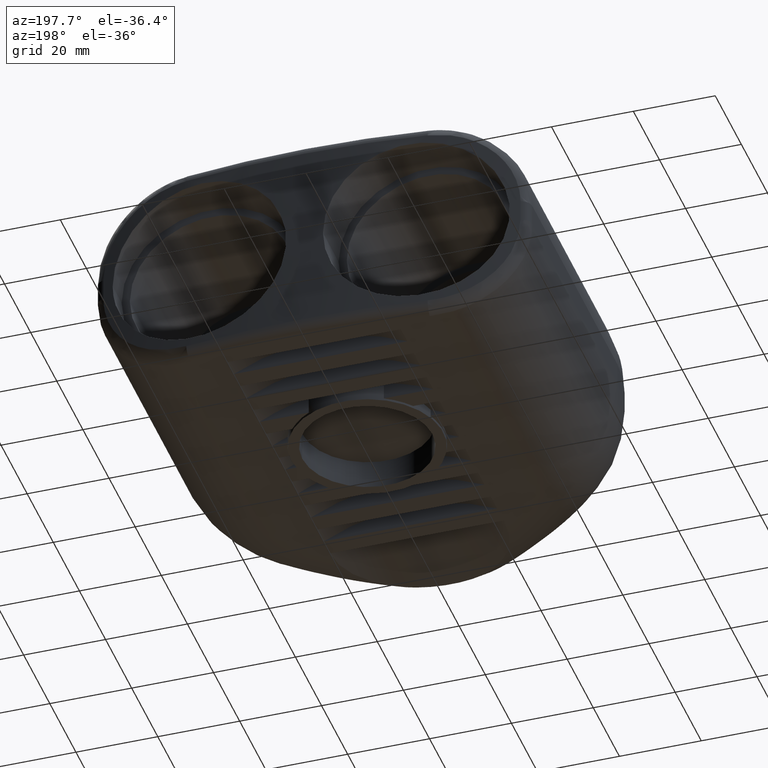
[diagram: clean part render]
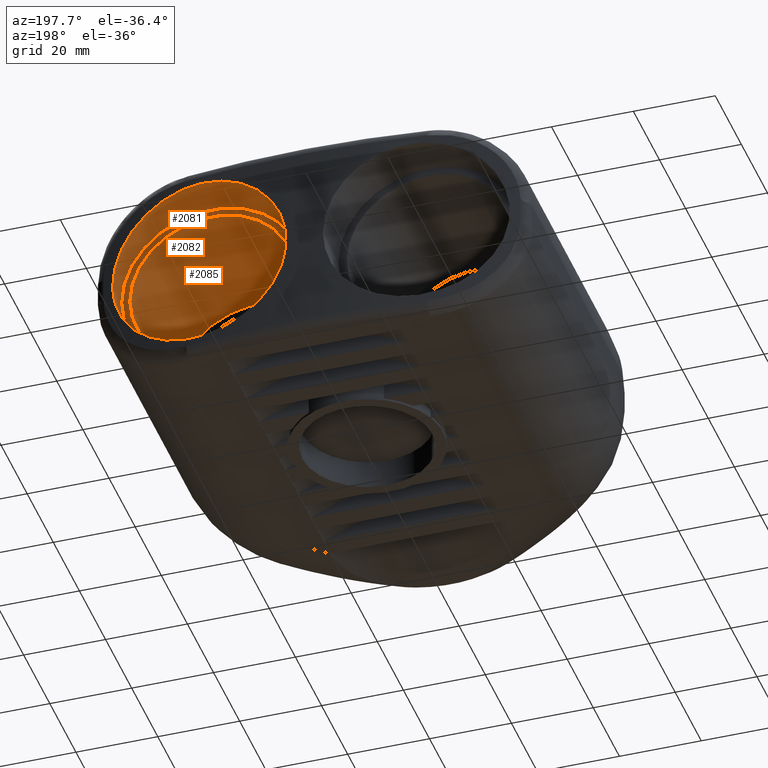
[diagram: same view with one multi-face feature highlighted, each face labeled with its STEP entity id]
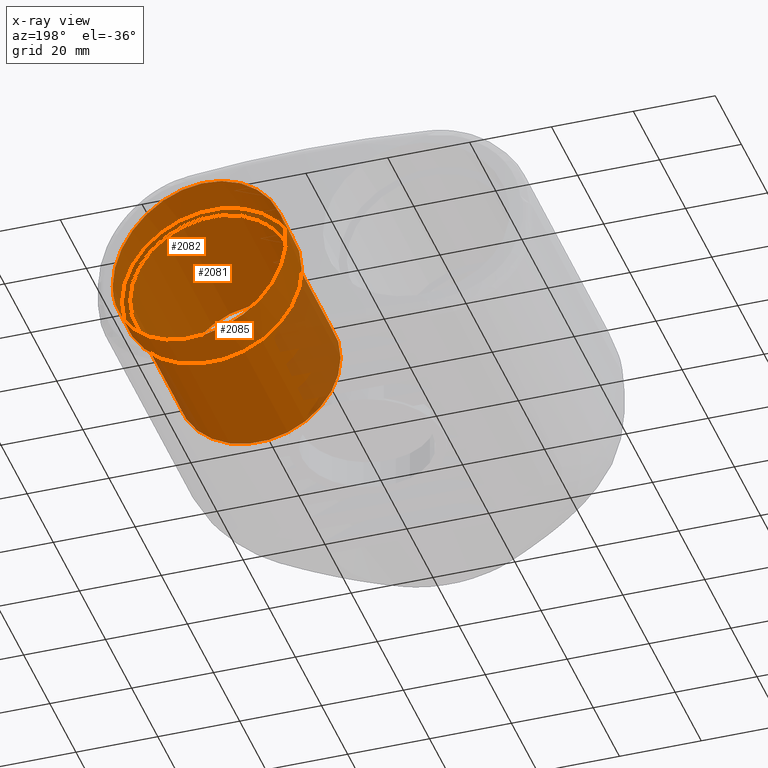
[diagram: x-ray of the same camera — body ghosted, the whole feature saturated]
A machine part, auxiliary view. The highlighted faces form ONE feature: a stepped (counterbored) hole: 2 coaxial cylindrical walls of radii 20 -> 22 mm joined by 1 annular planar shoulder face(s). The faces share edges in the B-rep.
The next image is the same camera in x-ray: the body ghosted and the whole hole feature saturated, so the bore chain is visible through the body.
Their STEP definitions:
[1] entity #2081 (Cylinder):
#321=B_SPLINE_CURVE_WITH_KNOTS('',3,(#3390,#3391,#3392,#3393,#3394,#3395,
#3396,#3397,#3398,#3399,#3400,#3401,#3402,#3403,#3404,#3405,#3406,#3407,
#3408,#3409,#3410,#3411,#3412,#3413,#3414,#3415,#3416,#3417,#3418,#3419,
#3420,#3421,#3422,#3423,#3424,#3425,#3426,#3427,#3428,#3429,#3430,#3431,
#3432,#3433,#3434,#3435,#3436,#3437,#3438,#3439,#3440,#3441,#3442,#3443,
#3444,#3445,#3446,#3447,#3448,#3449,#3450,#3451,#3452,#3453,#3454,#3455),
 .UNSPECIFIED.,.T.,.F.,(4,2,2,2,2,2,2,2,2,2,2,2,2,2,2,2,2,2,2,2,2,2,2,2,
2,2,2,2,2,2,2,2,4),(0.,0.414683448400996,0.829366896801993,1.24405034520299,
1.65873379360399,2.07806306334982,2.49739233309565,2.91672160284149,3.33605087258732,
3.75179079805204,4.16753072351676,4.58327064898148,4.9990105744462,5.41331684387736,
5.82762311330853,6.24192938273969,6.65623565217086,7.07054192160203,7.48484819103319,
7.89915446046436,8.31346072989552,8.72920065536024,9.14494058082496,9.56068050628968,
9.9764204317544,10.3957497015002,10.8150789712461,11.2344082409919,11.6537375107377,
12.0684209591387,12.4831044075397,12.8977878559407,13.3124713043417),
 .UNSPECIFIED.);
#423=FACE_BOUND('',#601,.T.);
#460=FACE_OUTER_BOUND('',#600,.T.);
#600=EDGE_LOOP('',(#1444));
#601=EDGE_LOOP('',(#1445));
#762=CIRCLE('',#2239,22.);
#905=VERTEX_POINT('',#3389);
#906=VERTEX_POINT('',#3456);
#1119=EDGE_CURVE('',#905,#905,#321,.T.);
#1120=EDGE_CURVE('',#906,#906,#762,.T.);
#1444=ORIENTED_EDGE('',*,*,#1119,.F.);
#1445=ORIENTED_EDGE('',*,*,#1120,.T.);
#2023=CYLINDRICAL_SURFACE('',#2238,22.);
#2081=ADVANCED_FACE('',(#460,#423),#2023,.F.);
#2238=AXIS2_PLACEMENT_3D('',#3388,#2536,#2537);
#2239=AXIS2_PLACEMENT_3D('',#3457,#2538,#2539);
#2536=DIRECTION('center_axis',(0.,-1.,0.));
#2537=DIRECTION('ref_axis',(1.,0.,0.));
#2538=DIRECTION('center_axis',(0.,-1.,0.));
#2539=DIRECTION('ref_axis',(1.,0.,0.));
#3388=CARTESIAN_POINT('Origin',(26.5,98.3999999999999,0.));
#3389=CARTESIAN_POINT('',(48.5,93.2613829564399,0.));
#3390=CARTESIAN_POINT('Ctrl Pts',(48.5,93.2613829564399,0.));
#3391=CARTESIAN_POINT('Ctrl Pts',(48.5,93.2613829564399,1.38227816133665));
#3392=CARTESIAN_POINT('Ctrl Pts',(48.3676135534697,93.2898924065748,2.81058300025897));
#3393=CARTESIAN_POINT('Ctrl Pts',(47.8114383339471,93.4080304162702,5.64929159123293));
#3394=CARTESIAN_POINT('Ctrl Pts',(47.3877767223302,93.4976045926313,7.05972251893855));
#3395=CARTESIAN_POINT('Ctrl Pts',(46.2694822695788,93.7286453868282,9.76250359013626));
#3396=CARTESIAN_POINT('Ctrl Pts',(45.573950223437,93.8701996210482,11.0570866560817));
#3397=CARTESIAN_POINT('Ctrl Pts',(43.9694293996467,94.1865548415797,13.4496757927443));
#3398=CARTESIAN_POINT('Ctrl Pts',(43.0603454343596,94.3612305748949,14.5476345871224));
#3399=CARTESIAN_POINT('Ctrl Pts',(41.1157401584812,94.7208927143848,16.5015509563398));
#3400=CARTESIAN_POINT('Ctrl Pts',(40.0112390212757,94.9186043035376,17.4227448538484));
#3401=CARTESIAN_POINT('Ctrl Pts',(37.6058068313806,95.3277307887827,19.0464346473169));
#3402=CARTESIAN_POINT('Ctrl Pts',(36.3049322206456,95.5390078480373,19.7490488854309));
#3403=CARTESIAN_POINT('Ctrl Pts',(33.5898411840542,95.9537249138025,20.8781172919417));
#3404=CARTESIAN_POINT('Ctrl Pts',(32.1735120831302,96.1573974969311,21.3054324281937));
#3405=CARTESIAN_POINT('Ctrl Pts',(29.3228937293156,96.5394915431299,21.8664460144944));
#3406=CARTESIAN_POINT('Ctrl Pts',(27.8885721164692,96.7178836809411,22.));
#3407=CARTESIAN_POINT('Ctrl Pts',(25.1233136824596,97.0365908292077,22.));
#3408=CARTESIAN_POINT('Ctrl Pts',(23.6978881267326,97.1880141156273,21.86868382676));
#3409=CARTESIAN_POINT('Ctrl Pts',(20.8594574685621,97.4625086358819,21.3137383679561));
#3410=CARTESIAN_POINT('Ctrl Pts',(19.4464364619885,97.5856154925425,20.8902080540463));
#3411=CARTESIAN_POINT('Ctrl Pts',(16.7343326975393,97.7982479158891,19.7682901220412));
#3412=CARTESIAN_POINT('Ctrl Pts',(15.4330583367707,97.8880364805802,19.0689847145123));
#3413=CARTESIAN_POINT('Ctrl Pts',(13.0255483769851,98.0363288340868,17.45114693325));
#3414=CARTESIAN_POINT('Ctrl Pts',(11.9193876299097,98.0949565792367,16.5325145388118));
#3415=CARTESIAN_POINT('Ctrl Pts',(9.96447244759123,98.1874658543598,14.5767422690158));
#3416=CARTESIAN_POINT('Ctrl Pts',(9.04853750345554,98.2244660633297,13.4737036234342));
#3417=CARTESIAN_POINT('Ctrl Pts',(7.43396230783962,98.2819930428039,11.0716050926513));
#3418=CARTESIAN_POINT('Ctrl Pts',(6.73522432162786,98.3026617496616,9.77261430280936));
#3419=CARTESIAN_POINT('Ctrl Pts',(5.61305036651279,98.3326075378535,7.06297981112477));
#3420=CARTESIAN_POINT('Ctrl Pts',(5.1887181348813,98.3419987113556,5.65017579029598));
#3421=CARTESIAN_POINT('Ctrl Pts',(4.6321337968594,98.3538098735887,2.80920788106796));
#3422=CARTESIAN_POINT('Ctrl Pts',(4.5,98.3562497234607,1.38102089810389));
#3423=CARTESIAN_POINT('Ctrl Pts',(4.5,98.3562497234607,-1.38102089810388));
#3424=CARTESIAN_POINT('Ctrl Pts',(4.6321337968594,98.3538098735887,-2.80920788106795));
#3425=CARTESIAN_POINT('Ctrl Pts',(5.1887181348813,98.3419987113556,-5.65017579029597));
#3426=CARTESIAN_POINT('Ctrl Pts',(5.61305036651279,98.3326075378535,-7.06297981112476));
#3427=CARTESIAN_POINT('Ctrl Pts',(6.73522432162785,98.3026617496616,-9.77261430280935));
#3428=CARTESIAN_POINT('Ctrl Pts',(7.43396230783961,98.2819930428039,-11.0716050926513));
#3429=CARTESIAN_POINT('Ctrl Pts',(9.04853750345553,98.2244660633297,-13.4737036234342));
#3430=CARTESIAN_POINT('Ctrl Pts',(9.96447244759123,98.1874658543598,-14.5767422690158));
#3431=CARTESIAN_POINT('Ctrl Pts',(11.9193876299097,98.0949565792367,-16.5325145388118));
#3432=CARTESIAN_POINT('Ctrl Pts',(13.0255483769851,98.0363288340868,-17.45114693325));
#3433=CARTESIAN_POINT('Ctrl Pts',(15.4330583367707,97.8880364805802,-19.0689847145123));
#3434=CARTESIAN_POINT('Ctrl Pts',(16.7343326975393,97.7982479158891,-19.7682901220412));
#3435=CARTESIAN_POINT('Ctrl Pts',(19.4464364619885,97.5856154925425,-20.8902080540463));
#3436=CARTESIAN_POINT('Ctrl Pts',(20.859457468562,97.4625086358819,-21.3137383679561));
#3437=CARTESIAN_POINT('Ctrl Pts',(23.6978881267326,97.1880141156273,-21.86868382676));
#3438=CARTESIAN_POINT('Ctrl Pts',(25.1233136824596,97.0365908292077,-22.));
#3439=CARTESIAN_POINT('Ctrl Pts',(27.8885721164692,96.7178836809411,-22.));
#3440=CARTESIAN_POINT('Ctrl Pts',(29.3228937293156,96.5394915431299,-21.8664460144944));
#3441=CARTESIAN_POINT('Ctrl Pts',(32.1735120831302,96.1573974969311,-21.3054324281937));
#3442=CARTESIAN_POINT('Ctrl Pts',(33.5898411840542,95.9537249138025,-20.8781172919417));
#3443=CARTESIAN_POINT('Ctrl Pts',(36.3049322206456,95.5390078480373,-19.7490488854309));
#3444=CARTESIAN_POINT('Ctrl Pts',(37.6058068313806,95.3277307887827,-19.0464346473169));
#3445=CARTESIAN_POINT('Ctrl Pts',(40.0112390212757,94.9186043035376,-17.4227448538484));
#3446=CARTESIAN_POINT('Ctrl Pts',(41.1157401584812,94.7208927143849,-16.5015509563398));
#3447=CARTESIAN_POINT('Ctrl Pts',(43.0603454343596,94.3612305748949,-14.5476345871224));
#3448=CARTESIAN_POINT('Ctrl Pts',(43.9694293996467,94.1865548415797,-13.4496757927443));
#3449=CARTESIAN_POINT('Ctrl Pts',(45.573950223437,93.8701996210482,-11.0570866560817));
#3450=CARTESIAN_POINT('Ctrl Pts',(46.2694822695788,93.7286453868282,-9.76250359013626));
#3451=CARTESIAN_POINT('Ctrl Pts',(47.3877767223302,93.4976045926313,-7.05972251893856));
#3452=CARTESIAN_POINT('Ctrl Pts',(47.8114383339471,93.4080304162702,-5.64929159123293));
#3453=CARTESIAN_POINT('Ctrl Pts',(48.3676135534697,93.2898924065748,-2.81058300025897));
#3454=CARTESIAN_POINT('Ctrl Pts',(48.5,93.2613829564399,-1.38227816133665));
#3455=CARTESIAN_POINT('Ctrl Pts',(48.5,93.2613829564399,5.55111512312578E-16));
#3456=CARTESIAN_POINT('',(4.5,86.3999999999999,2.69422295812418E-15));
#3457=CARTESIAN_POINT('Origin',(26.5,86.3999999999999,0.));
[2] entity #2085 (Cylinder):
#427=FACE_BOUND('',#609,.T.);
#464=FACE_OUTER_BOUND('',#608,.T.);
#608=EDGE_LOOP('',(#1452));
#609=EDGE_LOOP('',(#1453));
#763=CIRCLE('',#2241,20.);
#765=CIRCLE('',#2246,20.);
#907=VERTEX_POINT('',#3459);
#909=VERTEX_POINT('',#3466);
#1121=EDGE_CURVE('',#907,#907,#763,.T.);
#1123=EDGE_CURVE('',#909,#909,#765,.T.);
#1452=ORIENTED_EDGE('',*,*,#1121,.T.);
#1453=ORIENTED_EDGE('',*,*,#1123,.T.);
#2025=CYLINDRICAL_SURFACE('',#2245,20.);
#2085=ADVANCED_FACE('',(#464,#427),#2025,.F.);
#2241=AXIS2_PLACEMENT_3D('',#3460,#2542,#2543);
#2245=AXIS2_PLACEMENT_3D('',#3465,#2550,#2551);
#2246=AXIS2_PLACEMENT_3D('',#3467,#2552,#2553);
#2542=DIRECTION('center_axis',(0.,1.,0.));
#2543=DIRECTION('ref_axis',(1.,0.,0.));
#2550=DIRECTION('center_axis',(0.,-1.,0.));
#2551=DIRECTION('ref_axis',(1.,0.,0.));
#2552=DIRECTION('center_axis',(0.,-1.,0.));
#2553=DIRECTION('ref_axis',(1.,0.,0.));
#3459=CARTESIAN_POINT('',(6.5,86.3999999999999,2.44929359829471E-15));
#3460=CARTESIAN_POINT('Origin',(26.5,86.3999999999999,0.));
#3465=CARTESIAN_POINT('Origin',(26.5,98.3999999999999,0.));
#3466=CARTESIAN_POINT('',(6.5,50.3999999999999,2.44929359829471E-15));
#3467=CARTESIAN_POINT('Origin',(26.5,50.3999999999999,0.));
[3] entity #2082 (Plane):
#355=PLANE('',#2240);
#424=FACE_BOUND('',#603,.T.);
#461=FACE_OUTER_BOUND('',#602,.T.);
#602=EDGE_LOOP('',(#1446));
#603=EDGE_LOOP('',(#1447));
#762=CIRCLE('',#2239,22.);
#763=CIRCLE('',#2241,20.);
#906=VERTEX_POINT('',#3456);
#907=VERTEX_POINT('',#3459);
#1120=EDGE_CURVE('',#906,#906,#762,.T.);
#1121=EDGE_CURVE('',#907,#907,#763,.T.);
#1446=ORIENTED_EDGE('',*,*,#1120,.F.);
#1447=ORIENTED_EDGE('',*,*,#1121,.F.);
#2082=ADVANCED_FACE('',(#461,#424),#355,.T.);
#2239=AXIS2_PLACEMENT_3D('',#3457,#2538,#2539);
#2240=AXIS2_PLACEMENT_3D('',#3458,#2540,#2541);
#2241=AXIS2_PLACEMENT_3D('',#3460,#2542,#2543);
#2538=DIRECTION('center_axis',(0.,-1.,0.));
#2539=DIRECTION('ref_axis',(1.,0.,0.));
#2540=DIRECTION('center_axis',(0.,1.,0.));
#2541=DIRECTION('ref_axis',(0.,0.,1.));
#2542=DIRECTION('center_axis',(0.,1.,0.));
#2543=DIRECTION('ref_axis',(1.,0.,0.));
#3456=CARTESIAN_POINT('',(4.5,86.3999999999999,2.69422295812418E-15));
#3457=CARTESIAN_POINT('Origin',(26.5,86.3999999999999,0.));
#3458=CARTESIAN_POINT('Origin',(26.5,86.3999999999999,3.36431219583381E-16));
#3459=CARTESIAN_POINT('',(6.5,86.3999999999999,2.44929359829471E-15));
#3460=CARTESIAN_POINT('Origin',(26.5,86.3999999999999,0.));